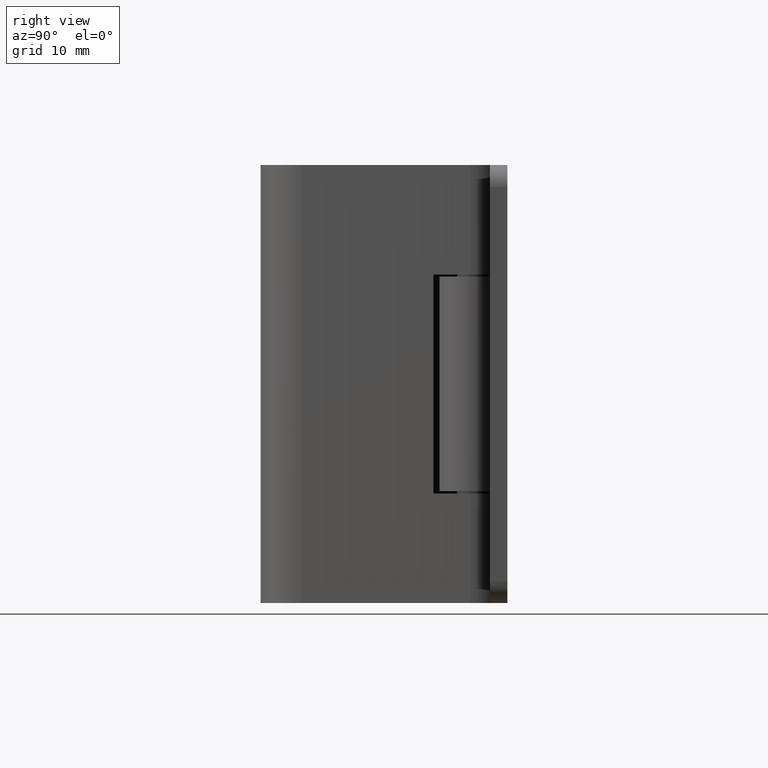
[diagram: clean part render]
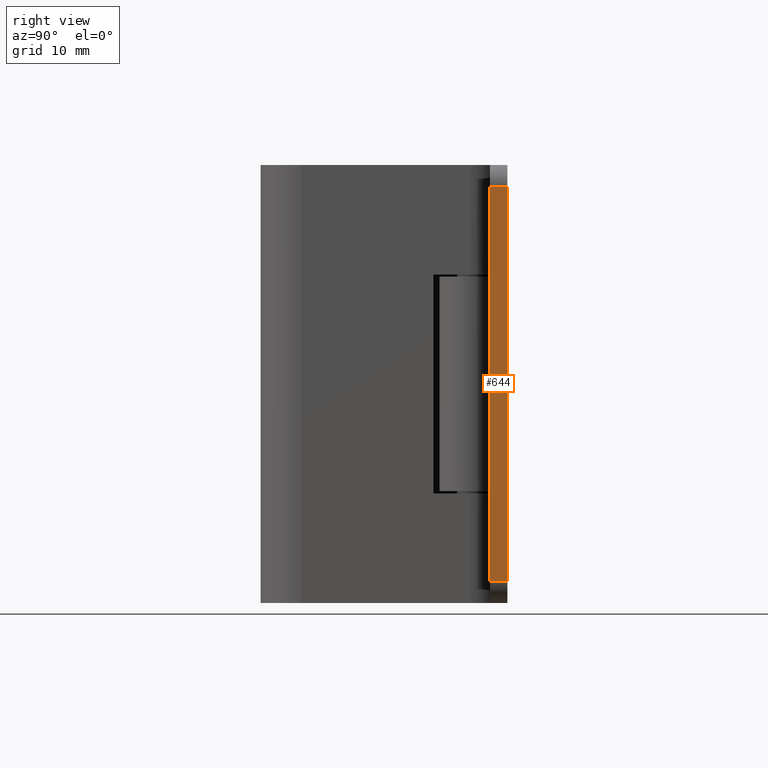
[diagram: same view with one face highlighted and labeled with its STEP entity id]
A machine part, right view. The second image highlights one B-rep face of the part: STEP entity #644.
In plain terms, the highlighted face is a freeform B-spline surface patch.
Its self-contained STEP definition (entity closure, byte-faithful):
#519=CARTESIAN_POINT('',(13.500000000000000,3.099998000000000,38.0));
#520=VERTEX_POINT('',#519);
#541=CARTESIAN_POINT('',(13.500000000000000,1.500000000000000,38.0));
#542=VERTEX_POINT('',#541);
#556=CARTESIAN_POINT('',(13.500000000000000,3.099998000000000,38.0));
#557=CARTESIAN_POINT('',(13.500000000000000,1.500000000000000,38.0));
#558=QUASI_UNIFORM_CURVE('',1,(#556,#557),.UNSPECIFIED.,.F.,.U.);
#559=EDGE_CURVE('',#520,#542,#558,.T.);
#578=CARTESIAN_POINT('',(13.500000000000000,3.099998000000000,2.0));
#579=VERTEX_POINT('',#578);
#595=CARTESIAN_POINT('',(13.500000000000000,1.500000000000000,2.0));
#596=VERTEX_POINT('',#595);
#597=CARTESIAN_POINT('',(13.500000000000000,1.500000000000000,2.0));
#598=CARTESIAN_POINT('',(13.500000000000000,3.099998000000000,2.0));
#599=QUASI_UNIFORM_CURVE('',1,(#597,#598),.UNSPECIFIED.,.F.,.U.);
#600=EDGE_CURVE('',#596,#579,#599,.T.);
#625=CARTESIAN_POINT('',(13.500000000000000,1.420080103001106,0.201800069774987));
#626=CARTESIAN_POINT('',(13.500000000000000,1.420080103001106,39.798200895820251));
#627=CARTESIAN_POINT('',(13.500000000000000,3.179917939914184,0.201800069774987));
#628=CARTESIAN_POINT('',(13.500000000000000,3.179917939914184,39.798200895820251));
#629=B_SPLINE_SURFACE_WITH_KNOTS('',1,1,((#625,#627),(#626,#628)),.UNSPECIFIED.,.F.,.F.,.U.,(2,2),(2,2),(0.0,39.596400826045262),(0.041708334948495,0.958291687403247),.UNSPECIFIED.);
#630=CARTESIAN_POINT('',(13.500000000000000,1.500000000000000,2.0));
#631=CARTESIAN_POINT('',(13.500000000000000,1.500000000000000,38.0));
#632=QUASI_UNIFORM_CURVE('',1,(#630,#631),.UNSPECIFIED.,.F.,.U.);
#633=EDGE_CURVE('',#596,#542,#632,.T.);
#634=ORIENTED_EDGE('',*,*,#633,.F.);
#635=ORIENTED_EDGE('',*,*,#600,.T.);
#636=CARTESIAN_POINT('',(13.500000000000000,3.099998000000000,2.0));
#637=CARTESIAN_POINT('',(13.500000000000000,3.099998000000000,38.0));
#638=QUASI_UNIFORM_CURVE('',1,(#636,#637),.UNSPECIFIED.,.F.,.U.);
#639=EDGE_CURVE('',#579,#520,#638,.T.);
#640=ORIENTED_EDGE('',*,*,#639,.T.);
#641=ORIENTED_EDGE('',*,*,#559,.T.);
#642=EDGE_LOOP('',(#634,#635,#640,#641));
#643=FACE_OUTER_BOUND('',#642,.T.);
#644=ADVANCED_FACE('',(#643),#629,.F.);